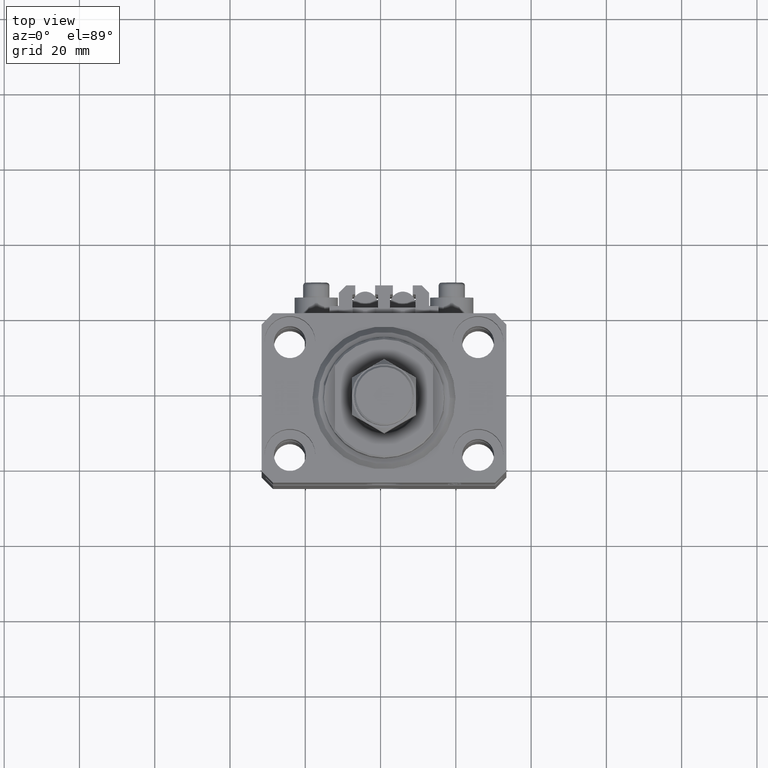
[diagram: clean part render]
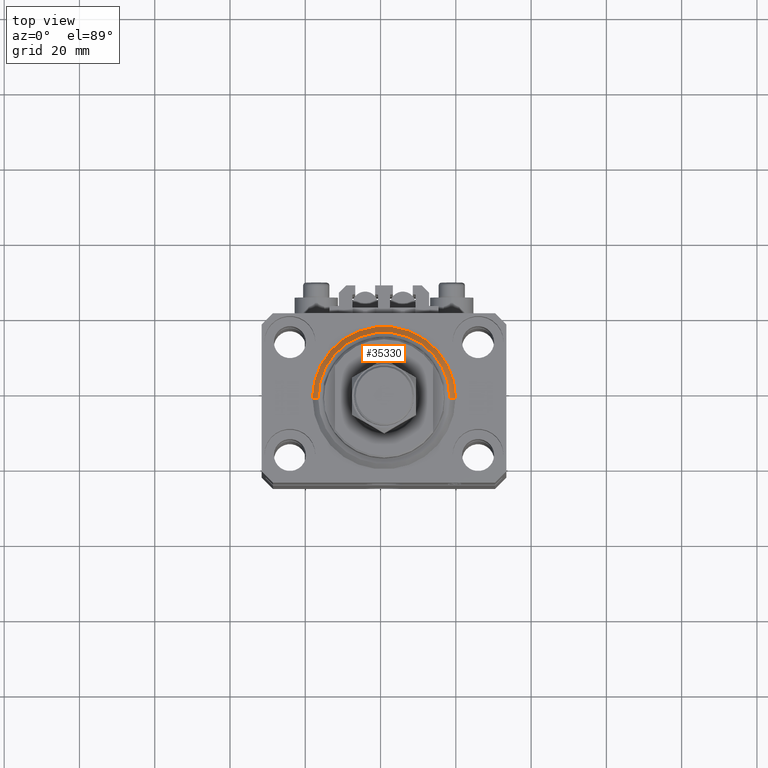
[diagram: same view with one face highlighted and labeled with its STEP entity id]
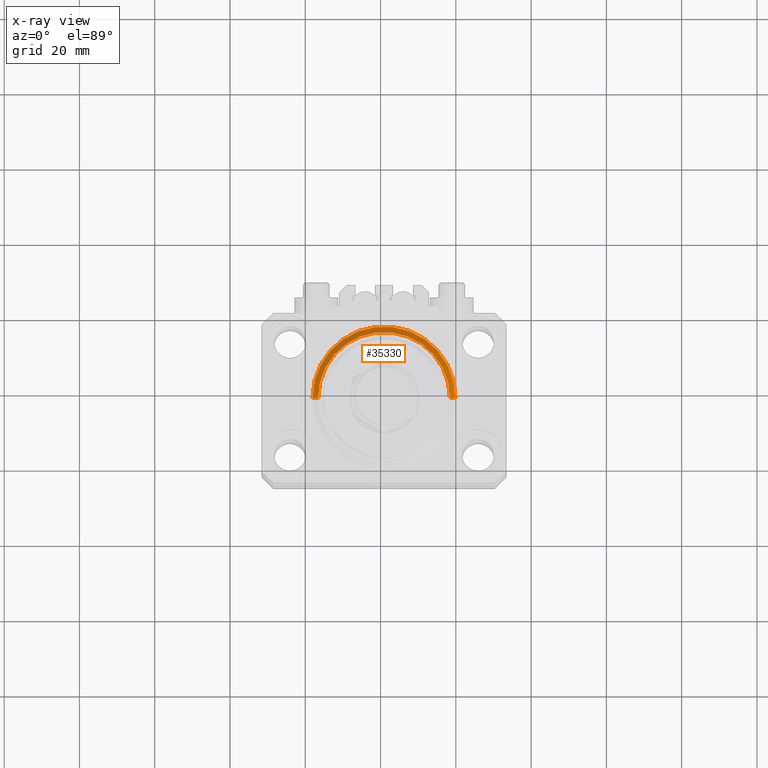
[diagram: x-ray of the same camera — body ghosted, the highlighted face saturated]
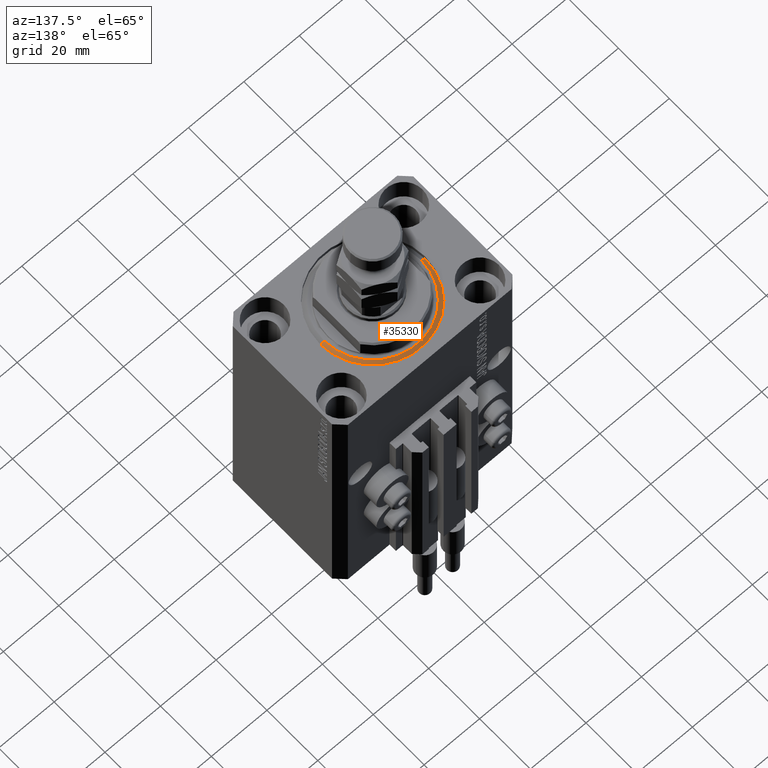
[diagram: same view with one face highlighted and labeled with its STEP entity id]
A machine part, top view. The second image highlights one B-rep face of the part: STEP entity #35330.
The next image is the same camera in x-ray: the body ghosted, the highlighted face saturated — about 0% of this face is hidden behind the body in this view.
A second angle (auxiliary view) of the same face is appended — the face is thin or edge-on in the first view.
In plain terms, the highlighted conical surface has half-angle 45 deg.
Its self-contained STEP definition (entity closure, byte-faithful):
#318 = CARTESIAN_POINT ( 'NONE',  ( -19.00000000000000000, 0.000000000000000000, 1.500000000000004885 ) ) ;
#2471 = CARTESIAN_POINT ( 'NONE',  ( 19.00000000000000000, 2.326828918379970970E-15, 1.500000000000004885 ) ) ;
#3553 = AXIS2_PLACEMENT_3D ( 'NONE', #30745, #11462, #26738 ) ;
#4164 = VERTEX_POINT ( 'NONE', #19423 ) ;
#4166 = DIRECTION ( 'NONE',  ( -0.000000000000000000, -0.000000000000000000, -1.000000000000000000 ) ) ;
#4233 = DIRECTION ( 'NONE',  ( -0.7071067811865483499, 8.659560562354943952E-17, 0.7071067811865467956 ) ) ;
#5664 = DIRECTION ( 'NONE',  ( -0.000000000000000000, -0.000000000000000000, 1.000000000000000000 ) ) ;
#6246 = VECTOR ( 'NONE', #14735, 1000.000000000000000 ) ;
#8732 = CARTESIAN_POINT ( 'NONE',  ( -19.00000000000000000, 2.326828918379970970E-15, 1.500000000000004885 ) ) ;
#11462 = DIRECTION ( 'NONE',  ( -0.000000000000000000, -0.000000000000000000, 1.000000000000000000 ) ) ;
#12199 = AXIS2_PLACEMENT_3D ( 'NONE', #30989, #4166, #19691 ) ;
#13240 = EDGE_LOOP ( 'NONE', ( #40880, #17428, #41361, #28525 ) ) ;
#13348 = EDGE_CURVE ( 'NONE', #4164, #30815, #39430, .T. ) ;
#14735 = DIRECTION ( 'NONE',  ( 0.7071067811865483499, 0.000000000000000000, 0.7071067811865467956 ) ) ;
#14861 = AXIS2_PLACEMENT_3D ( 'NONE', #32992, #5664, #24965 ) ;
#15909 = VERTEX_POINT ( 'NONE', #2471 ) ;
#16348 = CIRCLE ( 'NONE', #3553, 19.00000000000000000 ) ;
#17428 = ORIENTED_EDGE ( 'NONE', *, *, #17672, .T. ) ;
#17672 = EDGE_CURVE ( 'NONE', #4164, #20930, #43100, .T. ) ;
#19423 = CARTESIAN_POINT ( 'NONE',  ( -17.49999999999999289, 2.234980408443919215E-15, 0.000000000000000000 ) ) ;
#19691 = DIRECTION ( 'NONE',  ( 1.000000000000000000, 0.000000000000000000, 0.000000000000000000 ) ) ;
#20930 = VERTEX_POINT ( 'NONE', #318 ) ;
#21023 = VECTOR ( 'NONE', #4233, 1000.000000000000000 ) ;
#21827 = EDGE_CURVE ( 'NONE', #15909, #20930, #16348, .T. ) ;
#24965 = DIRECTION ( 'NONE',  ( 1.000000000000000000, 0.000000000000000000, 0.000000000000000000 ) ) ;
#26738 = DIRECTION ( 'NONE',  ( 1.000000000000000000, 0.000000000000000000, 0.000000000000000000 ) ) ;
#28525 = ORIENTED_EDGE ( 'NONE', *, *, #33089, .F. ) ;
#30745 = CARTESIAN_POINT ( 'NONE',  ( 0.000000000000000000, 0.000000000000000000, 1.500000000000004885 ) ) ;
#30815 = VERTEX_POINT ( 'NONE', #36689 ) ;
#30989 = CARTESIAN_POINT ( 'NONE',  ( 0.000000000000000000, 0.000000000000000000, 0.000000000000000000 ) ) ;
#32992 = CARTESIAN_POINT ( 'NONE',  ( 0.000000000000000000, 0.000000000000000000, 1.500000000000004885 ) ) ;
#33089 = EDGE_CURVE ( 'NONE', #30815, #15909, #42063, .T. ) ;
#35330 = ADVANCED_FACE ( 'NONE', ( #40027 ), #49340, .T. ) ;
#36689 = CARTESIAN_POINT ( 'NONE',  ( 17.49999999999999289, 0.000000000000000000, 0.000000000000000000 ) ) ;
#38038 = CARTESIAN_POINT ( 'NONE',  ( 19.00000000000000000, 0.000000000000000000, 1.500000000000004885 ) ) ;
#39430 = CIRCLE ( 'NONE', #12199, 17.49999999999999289 ) ;
#40027 = FACE_OUTER_BOUND ( 'NONE', #13240, .T. ) ;
#40880 = ORIENTED_EDGE ( 'NONE', *, *, #13348, .F. ) ;
#41361 = ORIENTED_EDGE ( 'NONE', *, *, #21827, .F. ) ;
#42063 = LINE ( 'NONE', #38038, #6246 ) ;
#43100 = LINE ( 'NONE', #8732, #21023 ) ;
#49340 = CONICAL_SURFACE ( 'NONE', #14861, 19.00000000000000000, 0.7853981633974492782 ) ;